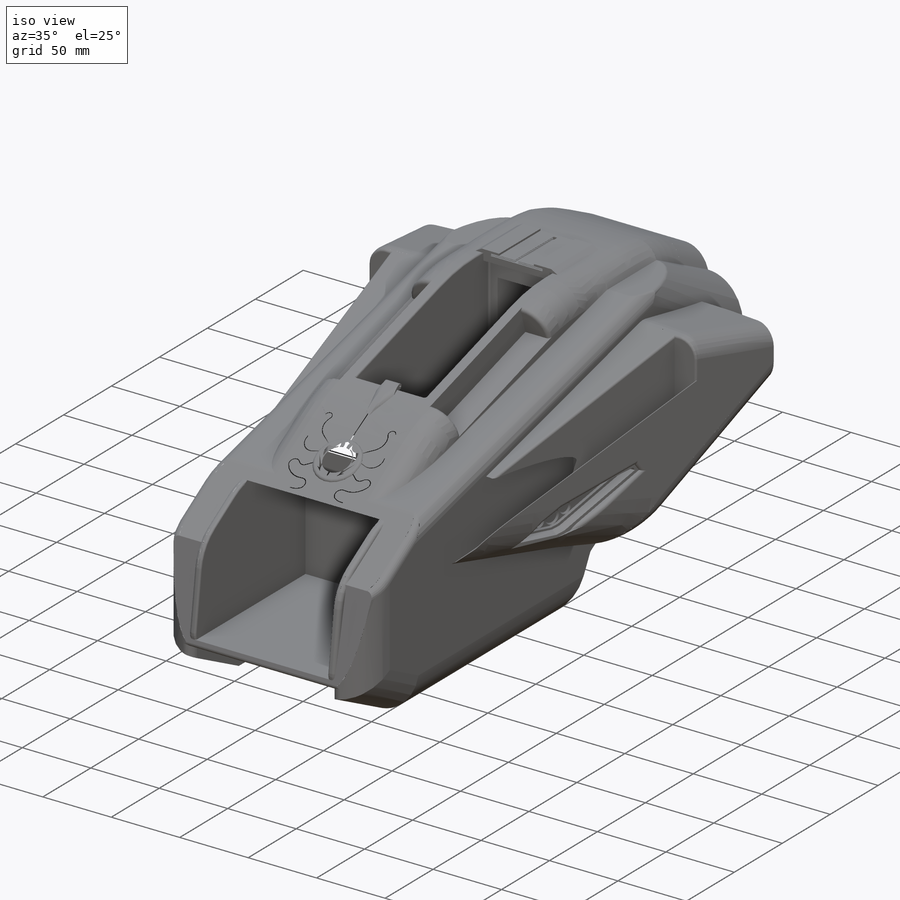
[diagram: iso view]
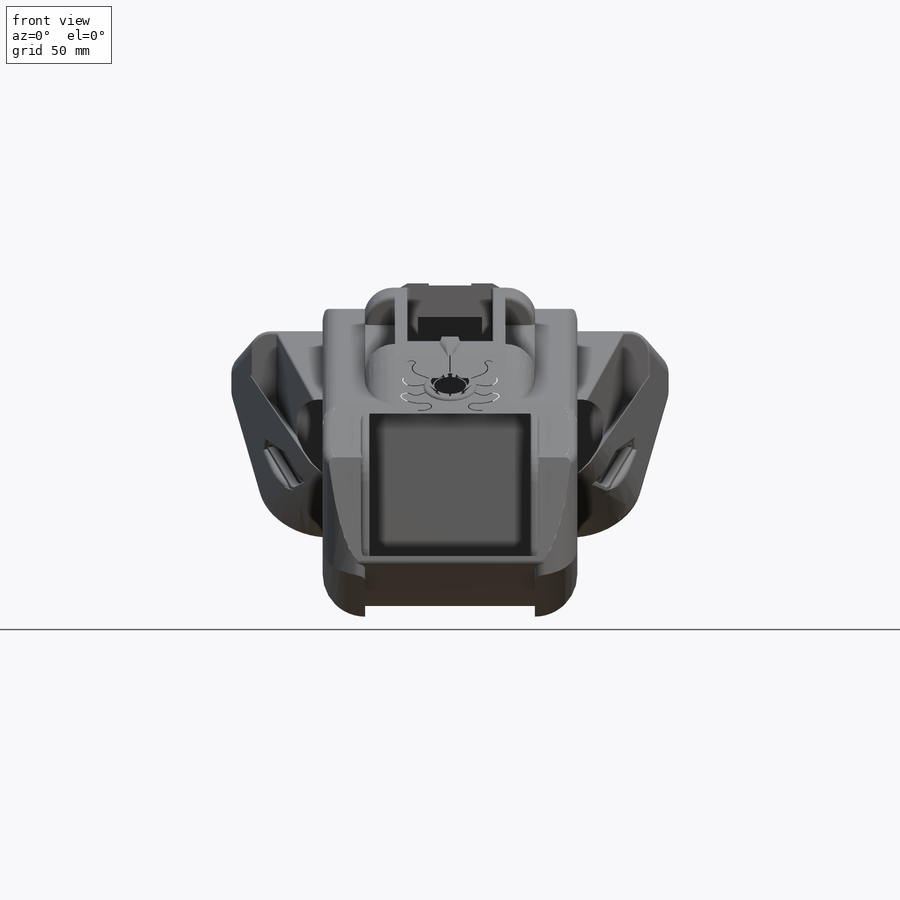
[diagram: front view]
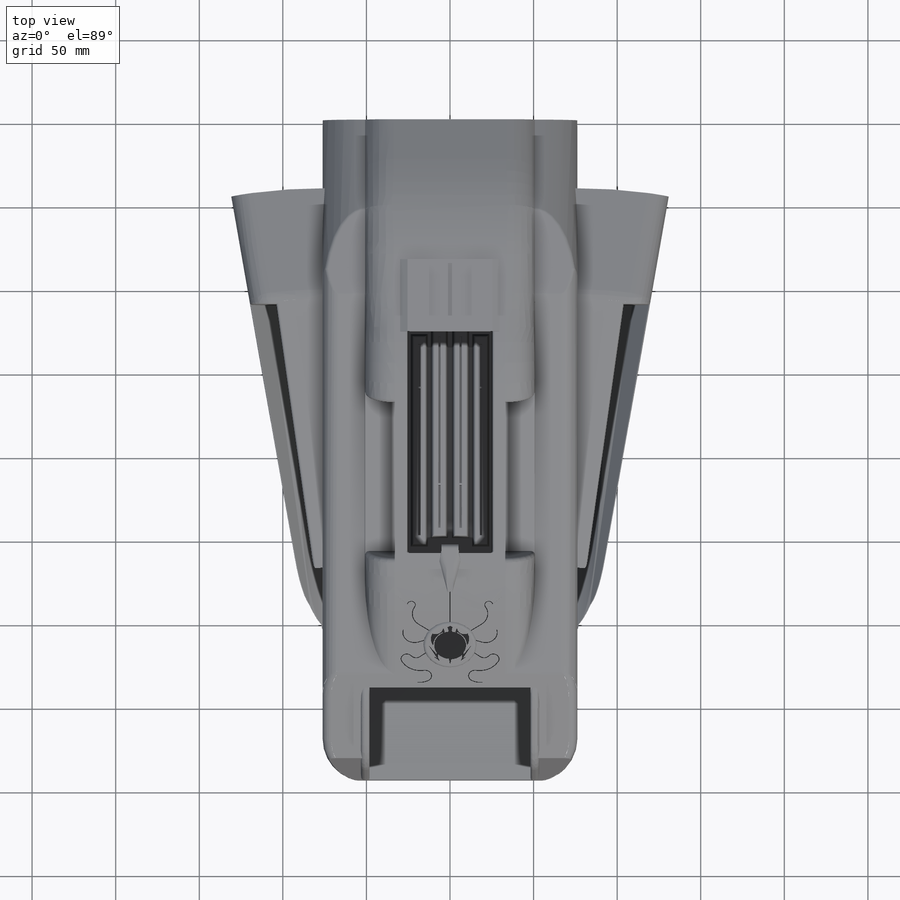
[diagram: top view]
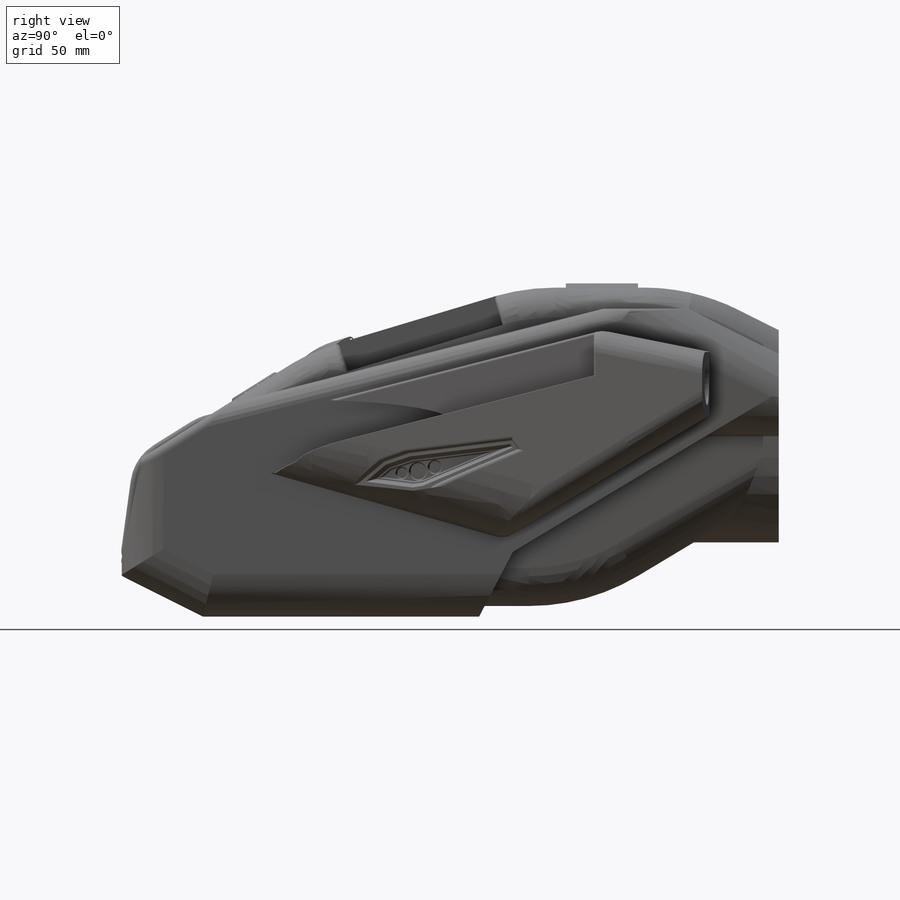
[diagram: right view]
SOLIDWORKS PART (.sldprt)
format: sldprt  version: not decoded by parser v0  size: 3,183,104 bytes
history: native  units: mm
features: sketch x38, fillet x36, cut_extrude x15, plane x13, mirror x11, extrude x8, sweep x4, cut_revolve x2, material x1, revolve x1 (+13 scaffold rows collapsed)
feature tree (142):
  scaffold x13  (default folders/planes/origin — collapsed)
  material  "Material <not specified>"
  sketch  "Sketch1"  dims[D1=127.0mm D2=25.4mm D3=50.8mm D4=101.6mm D5=38.1mm D6=127.0mm D7=63.5mm D8=101.6mm D9=12.7mm D10=63.5mm D11=25.4mm D12=50.8mm D13=228.6mm D14=50.8mm]
  extrude  "Boss-Extrude1"  Depth=101.6mm
  sketch  "Sketch2"  dims[c1.D1=6.35mm c1.D2=~5.679613mm c2.D1=6.35mm c2.D2=6.35mm c2.D3=165.1mm c2.D4=50.8mm c2.D5=12.7mm c2.D6=12.7mm c2.D7=50.8mm]
  extrude  "Boss-Extrude2"  Depth=25.4mm
  mirror  "Mirror1"
  sketch  "Sketch3"  dims[c1.D1=~187.314748mm c2.D1=~179.179244deg c3.D1=12.7mm c3.D2=12.7mm c3.D3=63.5mm c3.D4=12.7mm c3.D5=38.1mm c3.D6=38.1mm c3.D7=12.7mm c3.D8=139.7mm]
  revolve  "Revolve1"  Angle=10deg
  mirror  "Mirror2"
  fillet  "Fillet1"  Radius=127mm
  fillet  "Fillet2"  Radius=25.4mm
  fillet  "Fillet3"  Radius=5.08mm
  fillet  "Fillet4"  Radius=17.78mm
  fillet  "Fillet5"  Radius=10.16mm
  fillet  "Fillet6"  Radius=38.1mm
  fillet  "Fillet7"  Radius=38.1mm
  fillet  "Fillet8"  Radius=22.86mm
  fillet  "Fillet9"  Radius=50.8mm
  fillet  "Fillet10"  Radius=25.4mm
  fillet  "Fillet11"  Radius=25.4mm
  fillet  "Fillet12"  Radius=5.08mm
  fillet  "Fillet13"  Radius=2.54mm
  sketch  "Sketch4"  dims[c1.D7=7.62mm c1.D9=30.48mm c1.D1=3.81mm c1.D2=8.89mm c1.D3=25.4mm c1.D4=6.35mm c1.D5=76.2mm c1.D6=85.09mm c2.D7=1.27mm c2.D8=3.81mm c2.D3=2.54mm c2.D10=25.4mm]
  extrude  "Boss-Extrude3"  Depth=106.68mm
  fillet  "Fillet14"  Radius=2.54mm
  fillet  "Fillet15"  Radius=12.7mm
  fillet  "Fillet16"  Radius=12.7mm
  sketch  "Sketch5"  dims[c1.D1=76.2mm c1.D2=38.1mm c1.D6=12.7mm c1.D8=25.4mm c1.D3=12.7mm c2.D1=12.7mm c2.D3=50.8mm c2.D4=20.32mm c2.D5=6.35mm c2.D7=20.32mm c2.D9=20.32mm c2.D10=20.32mm c3.D3=10.16mm]
  cut_extrude  "Cut-Extrude1"  Depth=88.9mm
  plane  "Plane2"
  sketch  "Sketch7"  dims[D1=1.27mm]
  cut_extrude  "Cut-Extrude3"  Depth=127mm
  mirror  "Mirror3"
  plane  "Plane3"  Offset=2.54mm
  sketch  "Sketch8"  dims[D1=1.27mm D2=45.72mm D3=5.08mm D4=3.81mm D5=16.51mm D6=11.43mm D7=3.81mm]
  plane  "Plane4"  Offset=195.58mm
  sketch  "Sketch9"  dims[c1.D1=3.81mm c1.D2=45.72mm c1.D3=5.08mm c1.D4=3.81mm c1.D5=11.43mm c1.D6=16.51mm c1.D7=1.27mm c1.D8=1.27mm c1.D9=~49.043115mm c2.D9=~55.928272deg c2.D10=~40.624221mm c2.D11=~27.475441mm c3.D9=~40.624221mm c3.D10=~27.667962mm]
  mirror  "Mirror4"
  plane  "Plane5"
  plane  "Plane6"  Offset=2.54mm
  sketch  "Sketch10"  dims[D1=114.3mm D2=~85.075626mm]
  cut_extrude  "Cut-Extrude4"  Depth=96.52mm
  plane  "Plane7"
  plane  "Plane8"
  sketch  "Sketch12"  dims[c1.D1=~17.677445mm c2.D1=~83.843141deg]
  sketch  "Sketch13"  dims[c1.D1=17.78mm c2.D1=90.0deg]
  cut_extrude  "Cut-Extrude5"  Depth=96.774mm
  mirror  "Mirror5"
  sketch  "Sketch14"  dims[D1=2.54mm]
  cut_revolve  "Cut-Revolve1"  Angle=90deg
  mirror  "Mirror6"
  fillet  "Fillet17"  Radius=1.27mm
  fillet  "Fillet18"  Radius=0.254mm
  fillet  "Fillet19"  Radius=1.524mm
  fillet  "Fillet20"  Radius=1.524mm
  sketch  "Sketch15"  dims[D1=19.05mm D2=139.7mm D3=101.6mm]
  cut_extrude  "Cut-Extrude6"  Depth=50.8mm
  fillet  "Fillet21"  Radius=1.27mm
  sketch  "Sketch16"  dims[D1=10.16mm D2=3.81mm D3=1.27mm D4=6.35mm D5=1.27mm D6=20.32mm D7=2.54mm]
  extrude  "Boss-Extrude4"  Depth=3.81mm
  fillet  "Fillet22"  Radius=50.8mm
  fillet  "Fillet23"  Radius=5.08mm
  fillet  "Fillet24"  Radius=12.7mm
  sketch  "Sketch17"  dims[D2=1.27mm D1=1.27mm]
  cut_extrude  "Cut-Extrude7"  [1 undecoded]
  fillet  "Fillet25"  Radius=1.905mm
  fillet  "Fillet26"  Radius=1.27mm
  sketch  "Sketch18"  dims[D1=2.54mm D2=2.54mm D3=10.16mm D4=1.905mm D5=5.08mm D6=127.0mm]
  extrude  "Boss-Extrude5"  Depth=12.7mm
  fillet  "Fillet27"  Radius=1.27mm
  fillet  "Fillet28"  Radius=1.27mm
  sketch  "Sketch19"  dims[D1=3.81mm D2=25.4mm D3=1.27mm D4=1.27mm D5=114.3mm D6=3.81mm D7=114.3mm]
  cut_extrude  "Cut-Extrude8"  Depth=10.16mm
  fillet  "Fillet29"  Radius=0.254mm
  sketch  "Sketch20"  dims[D1=1.27mm D2=25.4mm D3=1.27mm D4=12.7mm D5=7.62mm]
  extrude  "Boss-Extrude6"  Depth=7.62mm
  sketch  "Sketch21"  dims[D1=38.1mm D2=0.635mm D3=0.254mm D4=0.3175mm D5=0.635mm]
  cut_extrude  "Cut-Extrude9"  Depth=40.64mm
  sketch  "Sketch22"  dims[D1=2.54mm D2=2.54mm]
  cut_extrude  "Cut-Extrude10"  Depth=40.64mm
  sketch  "Sketch23"  dims[D1=12.7mm D2=38.1mm D3=30.48mm]
  cut_extrude  "Cut-Extrude11"  Depth=101.6mm
  fillet  "Fillet30"  Radius=2.54mm
  fillet  "Fillet31"  Radius=0.635mm
  sketch  "Sketch24"  dims[c1.D1=50.8mm c1.D2=82.55mm c1.D3=16.51mm c1.D4=20.32mm c1.D5=15.24mm c1.D6=5.08mm c1.D7=63.5mm c1.D8=7.62mm c1.D9=5.08mm c1.D10=3.81mm c1.D11=19.05mm c1.D12=3.81mm c1.D13=25.4mm c1.D14=3.81mm c1.D15=107.95mm c1.D16=~18.154866mm c2.D16=10.0deg]
  cut_revolve  "Cut-Revolve2"  Angle=8deg
  mirror  "Mirror7"
  fillet  "Fillet32"  Radius=2.54mm
  sketch  "Sketch25"  dims[D1=2.032mm D2=2.032mm D3=2.032mm D4=2.032mm D5=2.032mm D6=2.032mm D7=10.16mm D8=6.35mm]
  cut_extrude  "Cut-Extrude12"  Depth=6.35mm
  mirror  "Mirror8"
  plane  "Plane9"  Offset=1.905mm
  sketch  "Sketch26"  dims[D1=~28.783728mm D2=~6.277285mm D3=~55.708602mm D4=~1.539219mm D5=~62.111506mm D6=~14.680237mm D7=~12.438652mm D8=10.16mm D9=~4.935694mm D10=~3.466325mm D11=~0.958223mm D12=~23.179152mm D13=~2.041257mm D14=~7.616612mm]
  cut_extrude  "Cut-Extrude13"  Depth=1.27mm
  mirror  "Mirror9"
  sketch  "Sketch27"  dims[D1=7.62mm D2=11.2014mm D3=8.763mm]
  cut_extrude  "Cut-Extrude14"  Depth=1.27mm
  mirror  "Mirror10"
  plane  "Plane10"
  sketch  "Sketch28"  dims[D1=31.75mm D2=120.65mm]
  extrude  "Boss-Extrude7"  Depth=2.54mm
  fillet  "Fillet33"  Radius=1.905mm
  sketch  "Sketch29"  dims[D1=19.05mm]
  cut_extrude  "Cut-Extrude15"  Depth=6.35mm
  fillet  "Fillet34"  Radius=0.254mm
  sketch  "Sketch30"  dims[D9=4.699mm D11=4.445mm D16=4.445mm D19=8.255mm D23=7.62mm D25=4.826mm D31=7.239mm D1=12.7mm D2=12.065mm D3=1.27mm D4=0.381mm D5=13.589mm D6=1.5875mm D7=0.889mm D8=6.985mm D10=6.35mm D12=1.2065mm D13=3.81mm D14=1.27mm D15=6.35mm D17=8.255mm D18=0.381mm D20=1.143mm D21=3.175mm D22=7.239mm D24=4.826mm D26=4.826mm D27=6.35mm D28=4.572mm D29=3.429mm D30=1.524mm D32=4.826mm D33=6.35mm D34=8.89mm D35=5.08mm D36=0.762mm D37=1.905mm D38=3.175mm D39=3.81mm D40=3.81mm D41=3.302mm]
  cut_extrude  "Cut-Extrude16"  Depth=0.635mm
  sketch  "Sketch31"  dims[D1=15.24mm D2=5.08mm]
  plane  "Plane11"
  sketch  "Sketch32"  dims[D1=0.508mm]
  sweep  "Sweep1"
  sketch  "Sketch33"
  sketch  "Sketch34"  dims[D3=8.89mm D5=2.413mm D9=6.985mm D14=3.683mm D15=3.429mm D18=12.7mm D20=3.81mm D21=10.16mm D1=8.255mm D2=5.715mm D4=12.192mm D6=1.905mm D7=7.62mm D8=2.54mm D10=8.89mm D11=5.715mm D12=7.62mm D13=5.08mm D16=3.81mm D17=6.35mm D19=2.54mm D22=6.35mm]
  plane  "Plane12"
  plane  "Plane13"
  plane  "Plane14"
  sketch  "Sketch35"  dims[D1=0.508mm]
  sketch  "Sketch36"  dims[D1=0.508mm]
  sketch  "Sketch37"  dims[D1=0.508mm]
  sweep  "Sweep2"
  sweep  "Sweep3"
  sketch  "Sketch34<3>"
  sweep  "Sweep4"
  sketch  "Sketch34<4>"
  fillet  "Fillet35"  Radius=0.254mm
  mirror  "Mirror11"
  sketch  "Sketch38"  dims[D1=63.5mm D2=6.35mm]
  extrude  "Boss-Extrude8"  Depth=50.8mm
  fillet  "Fillet36"  Radius=2.54mm
decode coverage: 96 of 115 modeling features carry decoded parameters
note: ~ marks probable driven/reference dimensions
note: 1 parameter value undecoded
summary: profile_refs inferred from adjacent sketches, not decoded
note: suppression state not decoded; provenance and decode notes live in map.json
